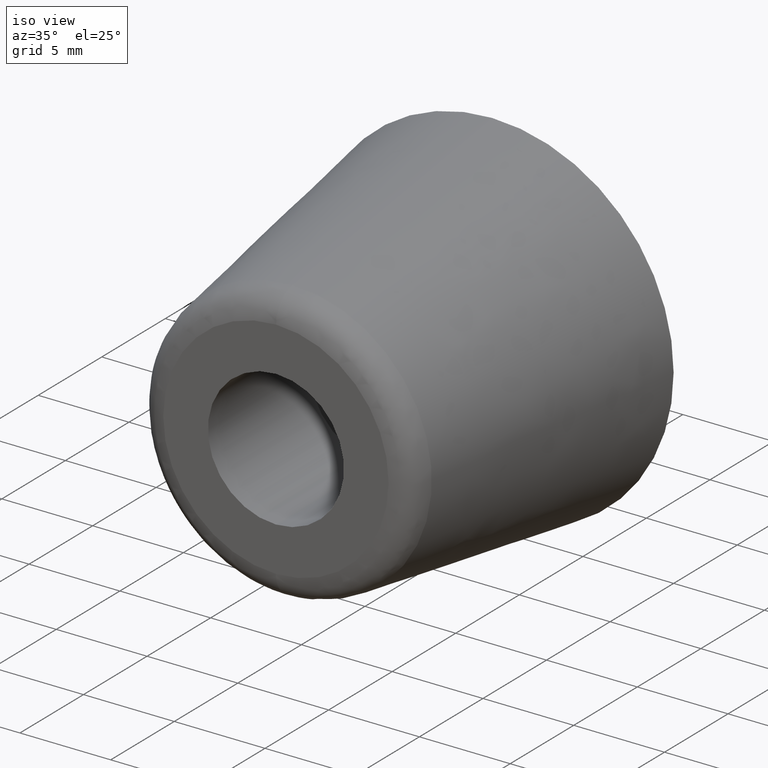
[diagram: clean part render]
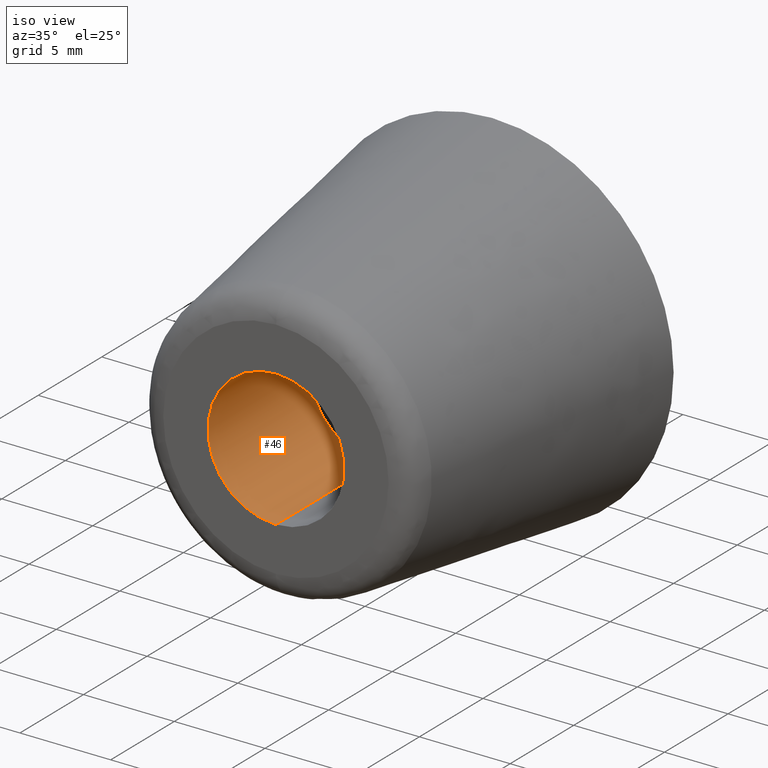
[diagram: same view with one face highlighted and labeled with its STEP entity id]
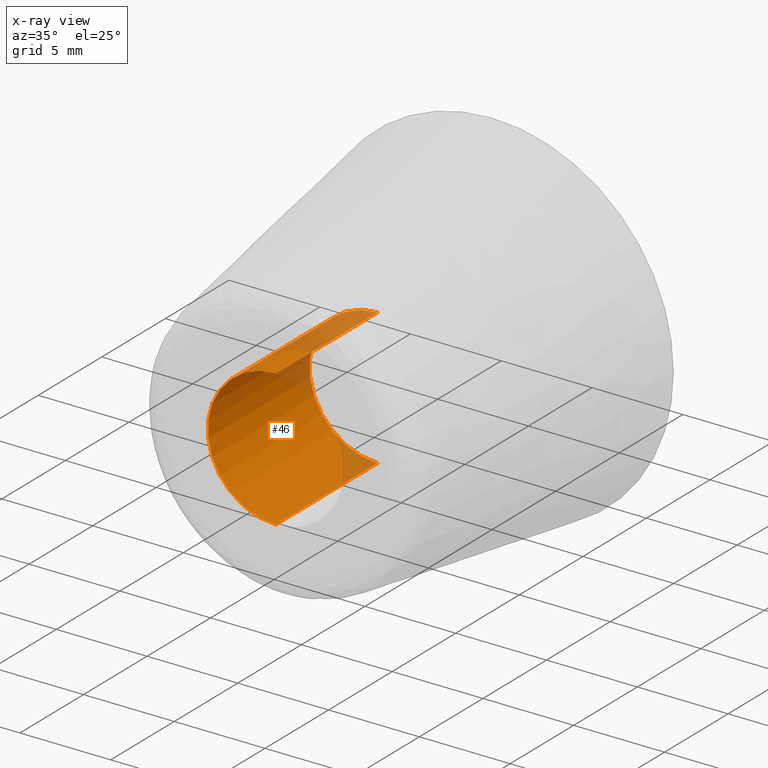
[diagram: x-ray of the same camera — body ghosted, the highlighted face saturated]
A machine part, iso view. The second image highlights one B-rep face of the part: STEP entity #46.
The next image is the same camera in x-ray: the body ghosted, the highlighted face saturated — about 15% of this face is hidden behind the body in this view.
In plain terms, the highlighted cylindrical surface (partial cylindrical patch) has radius 3.75 mm, axis along (-0, 1, 0).
Its self-contained STEP definition (entity closure, byte-faithful):
#46=ADVANCED_FACE('',(#115),#114,.F.);
#114=CYLINDRICAL_SURFACE('',#200,3.75000000000E+00);
#115=FACE_OUTER_BOUND('',#201,.T.);
#197=CARTESIAN_POINT('',(1.06581410364E-14,0.00000000000E+00,0.00000000000E+00));
#198=DIRECTION('',(-0.00000000000E+00,1.00000000000E+00,0.00000000000E+00));
#199=DIRECTION('',(-0.00000000000E+00,-0.00000000000E+00,1.00000000000E+00));
#200=AXIS2_PLACEMENT_3D('',#197,#198,#199);
#201=EDGE_LOOP('',(#300,#301,#302,#303));
#300=ORIENTED_EDGE('',*,*,#321,.F.);
#301=ORIENTED_EDGE('',*,*,#334,.F.);
#302=ORIENTED_EDGE('',*,*,#326,.T.);
#303=ORIENTED_EDGE('',*,*,#335,.T.);
#321=EDGE_CURVE('',#343,#342,#350,.T.);
#326=EDGE_CURVE('',#384,#385,#386,.T.);
#334=EDGE_CURVE('',#384,#343,#438,.T.);
#335=EDGE_CURVE('',#385,#342,#444,.T.);
#342=VERTEX_POINT('',#488);
#343=VERTEX_POINT('',#489);
#350=CIRCLE('',#497,3.75000000000E+00);
#384=VERTEX_POINT('',#518);
#385=VERTEX_POINT('',#519);
#386=CIRCLE('',#523,3.75000000000E+00);
#438=(BOUNDED_CURVE() B_SPLINE_CURVE(1,(#552,#553),.UNSPECIFIED.,.F.,.F.) B_SPLINE_CURVE_WITH_KNOTS((2,2),(8.33333366442E-02,9.16666667899E-01),.UNSPECIFIED.) CURVE() GEOMETRIC_REPRESENTATION_ITEM() RATIONAL_B_SPLINE_CURVE((1.00000000000E+00,1.00000000000E+00)) REPRESENTATION_ITEM('') );
#444=(BOUNDED_CURVE() B_SPLINE_CURVE(1,(#554,#555),.UNSPECIFIED.,.F.,.F.) B_SPLINE_CURVE_WITH_KNOTS((2,2),(8.33333333333E-02,9.16666666667E-01),.UNSPECIFIED.) CURVE() GEOMETRIC_REPRESENTATION_ITEM() RATIONAL_B_SPLINE_CURVE((7.50000000000E-01,7.50000000000E-01)) REPRESENTATION_ITEM('') );
#488=CARTESIAN_POINT('',(1.06581410364E-14,-9.00000000000E+00,-3.75000000000E+00));
#489=CARTESIAN_POINT('',(1.11022302463E-14,-9.00000000000E+00,3.75000000000E+00));
#494=CARTESIAN_POINT('',(1.06581410364E-14,-9.00000000000E+00,0.00000000000E+00));
#495=DIRECTION('',(0.00000000000E+00,-1.00000000000E+00,-0.00000000000E+00));
#496=DIRECTION('',(-1.22460635382E-16,0.00000000000E+00,-1.00000000000E+00));
#497=AXIS2_PLACEMENT_3D('',#494,#495,#496);
#518=CARTESIAN_POINT('',(1.11022302463E-14,-1.70000000000E+01,3.75000000000E+00));
#519=CARTESIAN_POINT('',(1.06581410364E-14,-1.70000000000E+01,-3.75000000000E+00));
#520=CARTESIAN_POINT('',(1.06581410364E-14,-1.70000000000E+01,0.00000000000E+00));
#521=DIRECTION('',(0.00000000000E+00,-1.00000000000E+00,-0.00000000000E+00));
#522=DIRECTION('',(-1.22460635382E-16,0.00000000000E+00,-1.00000000000E+00));
#523=AXIS2_PLACEMENT_3D('',#520,#521,#522);
#552=CARTESIAN_POINT('',(1.06581410364E-14,-1.69999999682E+01,3.75000000000E+00));
#553=CARTESIAN_POINT('',(1.06581410364E-14,-8.99999998817E+00,3.75000000000E+00));
#554=CARTESIAN_POINT('',(1.06581410364E-14,-1.70000000000E+01,-3.75000000000E+00));
#555=CARTESIAN_POINT('',(1.06581410364E-14,-9.00000000000E+00,-3.75000000000E+00));